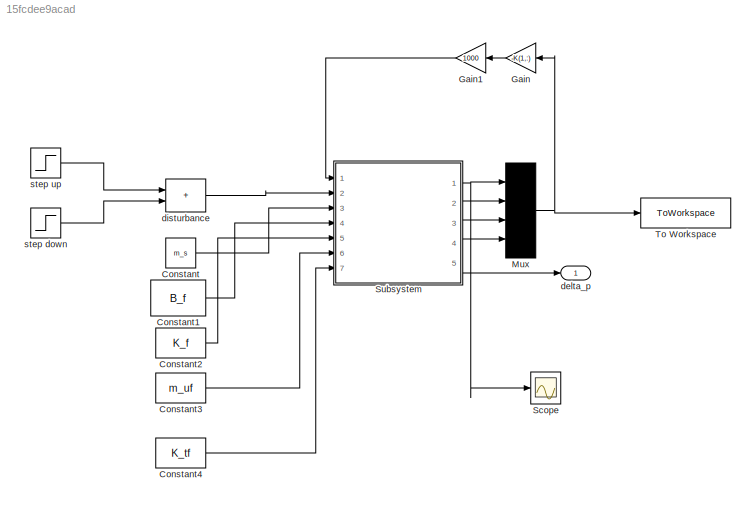
MODEL slx_15fcdee9acad
KIND model
CONFIG AbsTol = auto
CONFIG EnableMultiTasking = off
CONFIG FixedStep = auto
CONFIG MaxStep = auto
CONFIG MinStep = auto
CONFIG RelTol = 1e-3
CONFIG SampleTimeConstraint = Unconstrained
CONFIG SolverName = VariableStepAuto
CONFIG StartTime = 0.0
CONFIG StopTime = 5
BLOCK [Constant] Constant
  Value = m_s
BLOCK [Constant] Constant1
  Value = B_f
BLOCK [Constant] Constant2
  Value = K_f
BLOCK [Constant] Constant3
  Value = m_uf
BLOCK [Constant] Constant4
  Value = K_tf
BLOCK [Gain] Gain
  Gain = -K(1,:)
  Multiplication = Matrix(K*u) (u vector)
BLOCK [Gain] Gain1
  Gain = 1000
BLOCK [Mux] Mux
  DisplayOption = bar
  Ports = [4, 1]
BLOCK [Scope] Scope
  Floating = off
  NumInputPorts = 1
  Ports = [1]
  ScopeSpecificationString = Simulink.scopes.TimeScopeBlockCfg('CurrentConfiguration', extmgr.ConfigurationSet(extmgr.Configuration('Core','General UI',true),extmgr.Configuration('Core','Source UI',true),extmgr.Configuration('Sources','WiredSimulink',true),extmgr.Configuration('Visuals','Time Domain',true,'SerializedDisplays',{struct('MinYLimReal','-0.000027','MaxYLimReal','0.000052','YLabelReal','','MinYLimMag','0.000000','M...<+1367ch>
BLOCK [SubSystem] Subsystem
  Ports = [7, 5]
  ReferencedSubsystem = quarter_car_w_tire_subsystem
  RequestExecContextInheritance = off
  TreatAsAtomicUnit = on
BLOCK [ToWorkspace] To Workspace
  FixptAsFi = on
  MaxDataPoints = inf
  Ports = [1]
  SampleTime = -1
  SaveFormat = Timeseries
  VariableName = simout
BLOCK [Outport] delta_p
  VectorParamsAs1DForOutWhenUnconnected = off
BLOCK [Sum] disturbance
  IconShape = rectangular
  Ports = [2, 1]
BLOCK [Step] step down
  After = -1
  SampleTime = 0
BLOCK [Step] step up
  SampleTime = 0
  Time = 0
LINE Constant1:1 -> Subsystem:4
LINE Constant2:1 -> Subsystem:5
LINE Constant3:1 -> Subsystem:6
LINE Constant4:1 -> Subsystem:7
LINE Constant:1 -> Subsystem:3
LINE Gain1:1 -> Subsystem:1
LINE Gain:1 -> Gain1:1
NET Mux:1 -> Gain:1, To Workspace:1
NET Subsystem:1 -> Mux:1, Scope:1
LINE Subsystem:2 -> Mux:2
LINE Subsystem:3 -> Mux:3
LINE Subsystem:4 -> Mux:4
LINE Subsystem:5 -> delta_p:1
LINE disturbance:1 -> Subsystem:2
LINE step down:1 -> disturbance:2
LINE step up:1 -> disturbance:1
note: NET lines group one-source signal fan-out (src -> all destinations, sorted); 1:1 wires keep LINE
